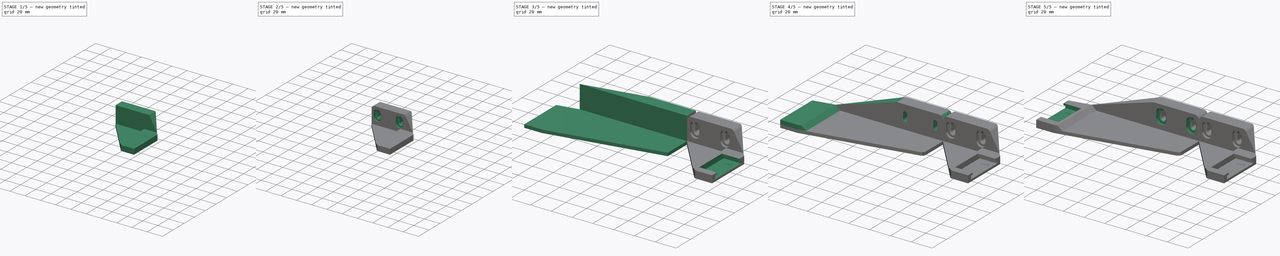
[diagram: build sequence overview — one tinted view per stage of 5, left to right]
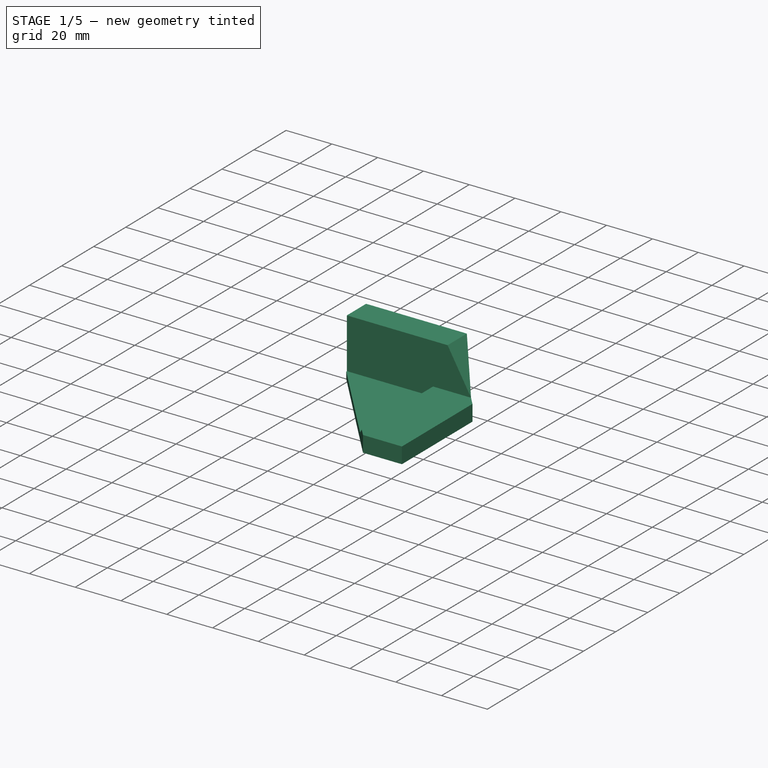
[diagram: stage 1 of 5 — iso view after this stage's code; geometry added in this stage tinted green]
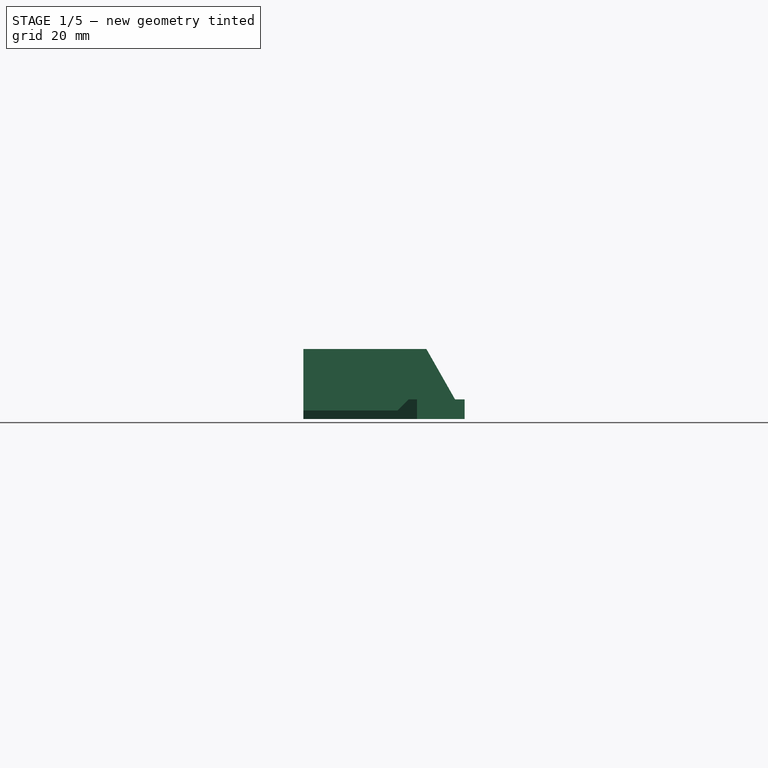
[diagram: stage 1 of 5 — front view after this stage's code; geometry added in this stage tinted green]
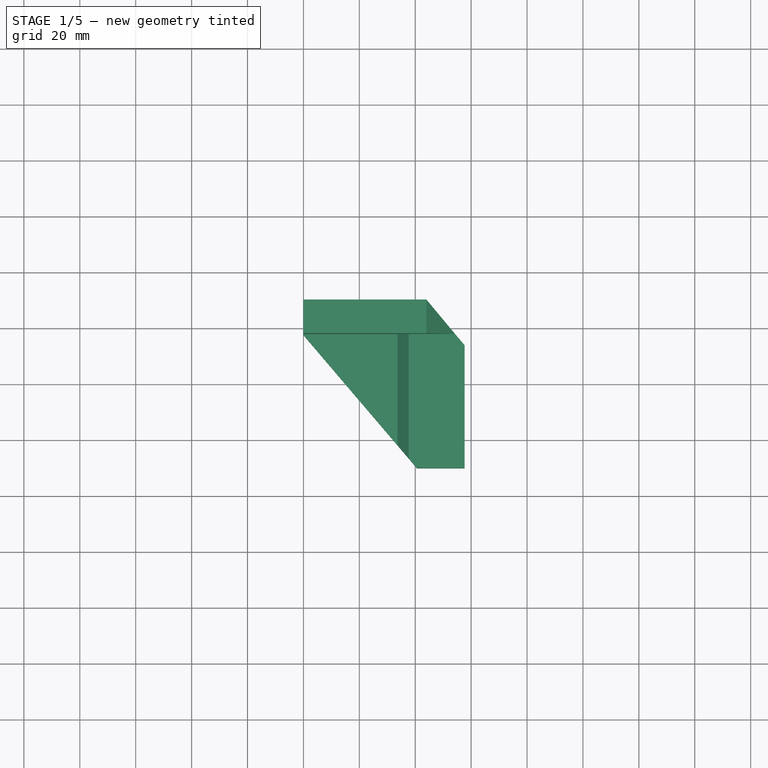
[diagram: stage 1 of 5 — top view after this stage's code; geometry added in this stage tinted green]
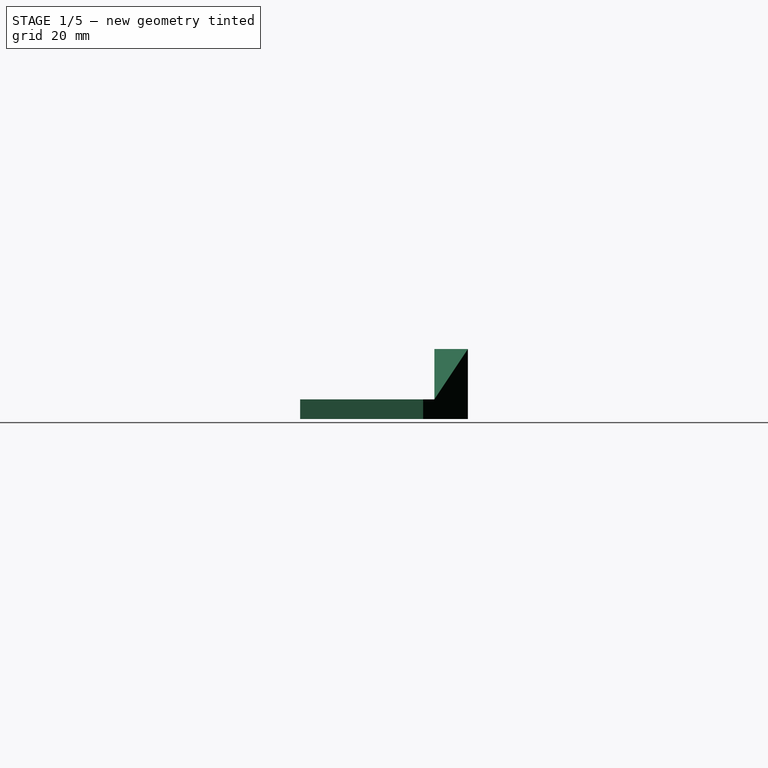
[diagram: stage 1 of 5 — right view after this stage's code; geometry added in this stage tinted green]
FCSTD DOCUMENT  (FreeCAD 0.16R6692 (Git))
Label: RolloMount
License: CreativeCommons Attribution-ShareAlike
LicenseURL: http://creativecommons.org/licenses/by-sa/4.0/
objects: Sketcher::SketchObject×18, PartDesign::Pocket×10, PartDesign::Pad×8, PartDesign::Draft×2, PartDesign::Fillet×2, PartDesign::Chamfer×2, App::DocumentObjectGroup×2
note: 60 computed .brp shape members not serialized (recipe doc carries the construction recipe); baked Part::Feature solids carry a one-line shape summary decoded from their .brp

FEATURE [Sketcher::SketchObject] Sketch  label="1_LeftBase_Sketch"
  sketch-geometry (10):
    g0: LineSegment [constr] StartX=-123.05 StartY=30 StartZ=0 EndX=0 EndY=30 EndZ=0
    g1: LineSegment [constr] StartX=0 StartY=30 StartZ=0 EndX=0 EndY=-30 EndZ=0
    g2: LineSegment [constr] StartX=0 StartY=-30 StartZ=0 EndX=-123.05 EndY=-30 EndZ=0
    g3: LineSegment [constr] StartX=-123.05 StartY=-30 StartZ=0 EndX=-123.05 EndY=30 EndZ=0
    g4: LineSegment StartX=0 StartY=30 StartZ=0 EndX=0 EndY=-8.5351 EndZ=0
    g5: LineSegment StartX=-123.05 StartY=-30 StartZ=0 EndX=-106.05 EndY=-30 EndZ=0
    g6: LineSegment StartX=0 StartY=-8.5351 StartZ=0 EndX=-106.05 EndY=-30 EndZ=0
    g7: LineSegment StartX=-123.05 StartY=-30 StartZ=0 EndX=-123.05 EndY=14 EndZ=0
    g8: LineSegment StartX=-123.05 StartY=14 StartZ=0 EndX=-44 EndY=30 EndZ=0
    g9: LineSegment StartX=-44 StartY=30 StartZ=0 EndX=0 EndY=30 EndZ=0
  constraints (28):
    c: Coincident(g0,g1)
    c: Coincident(g1,g2)
    c: Coincident(g2,g3)
    c: Coincident(g3,g0)
    c: Horizontal(g0)
    c: Horizontal(g2)
    c: Vertical(g1)
    c: Vertical(g3)
    c: DistanceY(g3,g3) = 60
    c: DistanceX(g0,g0) = 123.05
    c: Symmetric(g1,g0,g-1)
    c: PointOnObject(g-1,g1)
    c: Vertical(g4)
    c: Coincident(g4,g0)
    c: Horizontal(g5)
    c: Coincident(g5,g2)
    c: DistanceX(g5,g5) = 17
    c: Coincident(g5,g6)
    c: Coincident(g4,g6)
    c: Coincident(g7,g2)
    c: DistanceY(g7,g7) = 44
    c: Vertical(g7)
    c: Coincident(g8,g7)
    c: PointOnObject(g8,g0)
    c: Coincident(g9,g8)
    c: Coincident(g9,g0)
    c: DistanceX(g9,g9) = 44
    c: Parallel(g8,g6)
FEATURE [Sketcher::SketchObject] Sketch002  label="1_RightBase_Sketch"
  sketch-geometry (10):
    g0: LineSegment [constr] StartX=0 StartY=30 StartZ=0 EndX=57.65 EndY=30 EndZ=0
    g1: LineSegment [constr] StartX=57.65 StartY=30 StartZ=0 EndX=57.65 EndY=-30 EndZ=0
    g2: LineSegment [constr] StartX=57.65 StartY=-30 StartZ=0 EndX=0 EndY=-30 EndZ=0
    g3: LineSegment [constr] StartX=0 StartY=-30 StartZ=0 EndX=0 EndY=30 EndZ=0
    g4: LineSegment StartX=40.65 StartY=-30 StartZ=0 EndX=57.65 EndY=-30 EndZ=0
    g5: LineSegment StartX=0 StartY=30 StartZ=0 EndX=0 EndY=17.6484 EndZ=0
    g6: LineSegment StartX=0 StartY=17.6484 StartZ=0 EndX=40.65 EndY=-30 EndZ=0
    g7: LineSegment StartX=0 StartY=30 StartZ=0 EndX=44 EndY=30 EndZ=0
    g8: LineSegment StartX=57.65 StartY=-30 StartZ=0 EndX=57.65 EndY=14 EndZ=0
    g9: LineSegment StartX=44 StartY=30 StartZ=0 EndX=57.65 EndY=14 EndZ=0
  constraints (28):
    c: Coincident(g0,g1)
    c: Coincident(g2,g3)
    c: Coincident(g3,g0)
    c: Horizontal(g0)
    c: Horizontal(g2)
    c: Vertical(g1)
    c: Vertical(g3)
    c: DistanceX(g0,g0) = 57.65
    c: DistanceY(g1,g1) = 60
    c: Symmetric(g0,g2,g-1)
    c: PointOnObject(g0,g-2)
    c: Horizontal(g4)
    c: Coincident(g5,g0)
    c: Vertical(g5)
    c: Horizontal(g7)
    c: Coincident(g7,g0)
    c: Vertical(g8)
    c: DistanceY(g8,g8) = 44
    c: Coincident(g9,g7)
    c: Coincident(g5,g6)
    c: Coincident(g8,g9)
    c: DistanceX(g7,g7) = 44
    c: Parallel(g9,g6)
    c: DistanceX(g4,g4) = 17
    c: Coincident(g1,g2)
    c: Coincident(g1,g4)
    c: Coincident(g1,g8)
    c: Coincident(g6,g4)
FEATURE [PartDesign::Pad] Pad002  label="1_RightBase_Pad"
  Length = 3
  Length2 = 100
  Sketch = -> Sketch002
  Type = 0
FEATURE [Sketcher::SketchObject] Sketch006  label="2_RightWallMount_Sketch"
  ExternalGeometry = -> [Pad002]
  Placement = pos=(0,0,3) rot=(0,0,1;0rad)
  Support = -> Pad002 [Face8]
  sketch-geometry (4):
    g0: LineSegment StartX=0 StartY=30 StartZ=0 EndX=0 EndY=18 EndZ=0
    g1: LineSegment StartX=0 StartY=18 StartZ=0 EndX=54.2375 EndY=18 EndZ=0
    g2: LineSegment StartX=54.2375 StartY=18 StartZ=0 EndX=44 EndY=30 EndZ=0
    g3: LineSegment StartX=44 StartY=30 StartZ=0 EndX=0 EndY=30 EndZ=0
  constraints (10):
    c: Vertical(g0)
    c: Coincident(g0,g1)
    c: Horizontal(g1)
    c: Coincident(g1,g2)
    c: Coincident(g2,g3)
    c: Coincident(g0,g3)
    c: Coincident(g0,g-3)
    c: Coincident(g2,g-4)
    c: PointOnObject(g1,g-4)
    c: DistanceY(g0,g0) = 12
FEATURE [PartDesign::Pad] Pad005  label="2_RightWallMount_Pad"
  Length = 22
  Length2 = 100
  Sketch = -> Sketch006
  Type = 0
FEATURE [Sketcher::SketchObject] Sketch007  label="3_RightRamp_Sketch"
  ExternalGeometry = -> [Pad005]
  Placement = pos=(0,18,0) rot=(1,0,0;1.5708rad)
  Support = -> Pad005 [Face13]
  sketch-geometry (5):
    g0: LineSegment StartX=43.4312 StartY=26 StartZ=0 EndX=55.2375 EndY=26 EndZ=0
    g1: LineSegment StartX=55.2375 StartY=26 StartZ=0 EndX=55.2375 EndY=5.24176 EndZ=0
    g2: LineSegment StartX=55.2375 StartY=5.24176 StartZ=0 EndX=43.4312 EndY=26 EndZ=0
    g3: GeomPoint [constr] X=44 Y=25 Z=0
    g4: GeomPoint [constr] X=54.2375 Y=7 Z=0
  constraints (13):
    c: Horizontal(g0)
    c: Coincident(g0,g1)
    c: Vertical(g1)
    c: Coincident(g1,g2)
    c: Coincident(g2,g0)
    c: DistanceY(g-4,g0) = 1
    c: DistanceX(g-4,g0) = 1
    c: PointOnObject(g3,g2)
    c: PointOnObject(g4,g2)
    c: PointOnObject(g4,g-4)
    c: PointOnObject(g3,g-3)
    c: DistanceX(g-3,g3) = 44
    c: DistanceY(g-4,g4) = 4
FEATURE [PartDesign::Pocket] Pocket001  label="3_RightRamp_Pocket"
  Length = 5
  Sketch = -> Sketch007
  Type = 1
FEATURE [Sketcher::SketchObject] Sketch008  label="4_RightRolloMount_Sketch"
  ExternalGeometry = -> [Pocket001]
  Placement = pos=(0,0,3) rot=(0,0,1;0rad)
  Support = -> Pocket001 [Face9]
  sketch-geometry (6):
    g0: LineSegment StartX=37.65 StartY=-26.4835 StartZ=0 EndX=40.65 EndY=-30 EndZ=0
    g1: LineSegment StartX=40.65 StartY=-30 StartZ=0 EndX=57.65 EndY=-30 EndZ=0
    g2: LineSegment StartX=57.65 StartY=-30 StartZ=0 EndX=57.65 EndY=14 EndZ=0
    g3: LineSegment StartX=57.65 StartY=14 StartZ=0 EndX=54.2375 EndY=18 EndZ=0
    g4: LineSegment StartX=54.2375 StartY=18 StartZ=0 EndX=37.65 EndY=18 EndZ=0
    g5: LineSegment StartX=37.65 StartY=18 StartZ=0 EndX=37.65 EndY=-26.4835 EndZ=0
  constraints (14):
    c: Coincident(g0,g1)
    c: Coincident(g1,g2)
    c: Coincident(g2,g3)
    c: Coincident(g3,g4)
    c: Coincident(g4,g5)
    c: Coincident(g5,g0)
    c: Vertical(g5)
    c: Coincident(g0,g-3)
    c: Coincident(g1,g-4)
    c: Coincident(g2,g-4)
    c: Coincident(g3,g-5)
    c: Horizontal(g4)
    c: PointOnObject(g0,g-3)
    c: DistanceX(g0,g1) = 20
FEATURE [PartDesign::Pad] Pad006  label="4_RightRolloMount_Pad"
  Length = 4
  Length2 = 100
  Sketch = -> Sketch008
  Type = 0
FEATURE [PartDesign::Draft] Draft  label="5_RightRolloMount_Draft"
  Angle = 45
  Base = -> Pad006 [Face18]
  NeutralPlane = -> Pad006 [Face19]
  Reversed = true
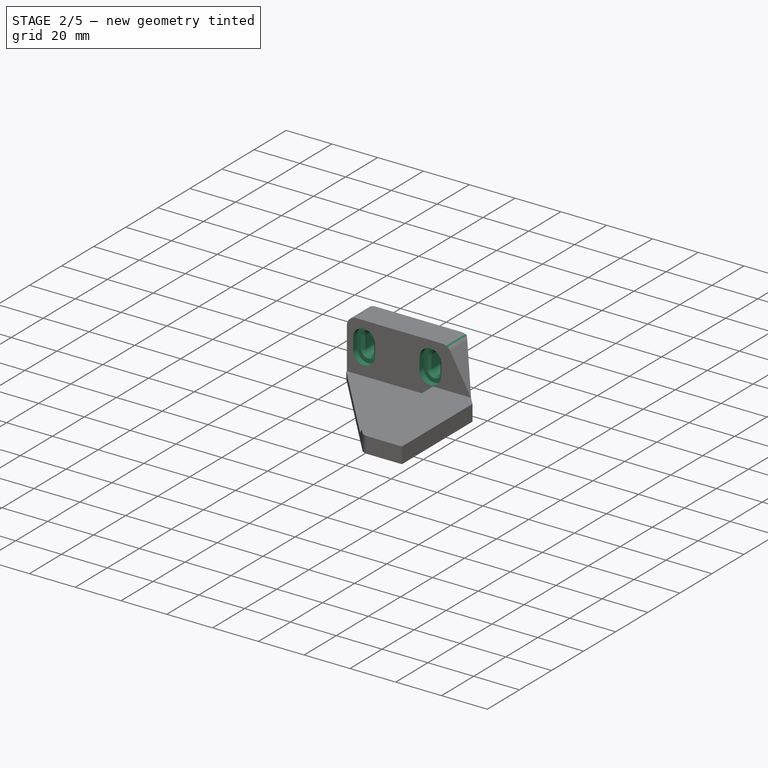
[diagram: stage 2 of 5 — iso view after this stage's code; geometry added in this stage tinted green]
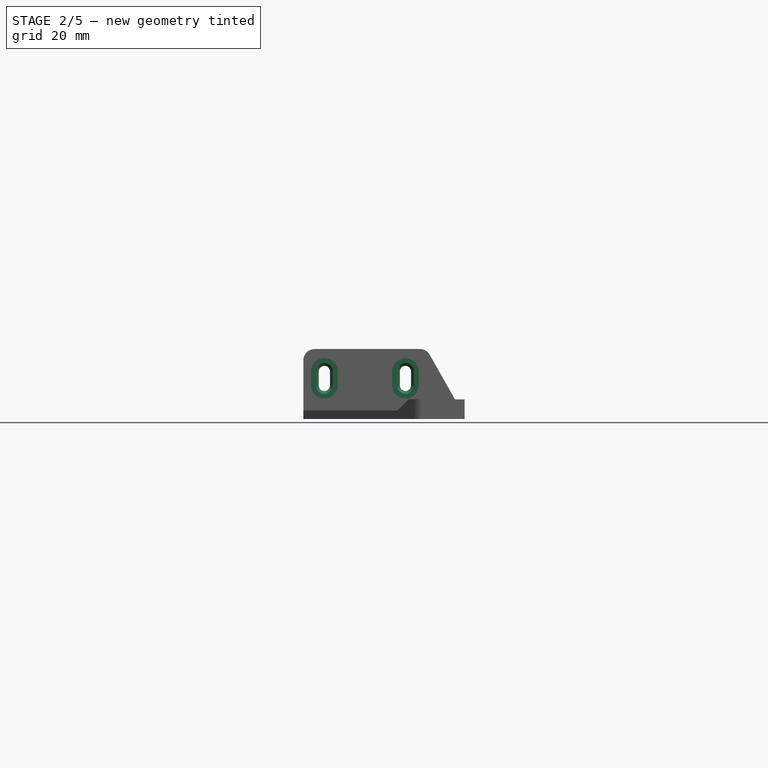
[diagram: stage 2 of 5 — front view after this stage's code; geometry added in this stage tinted green]
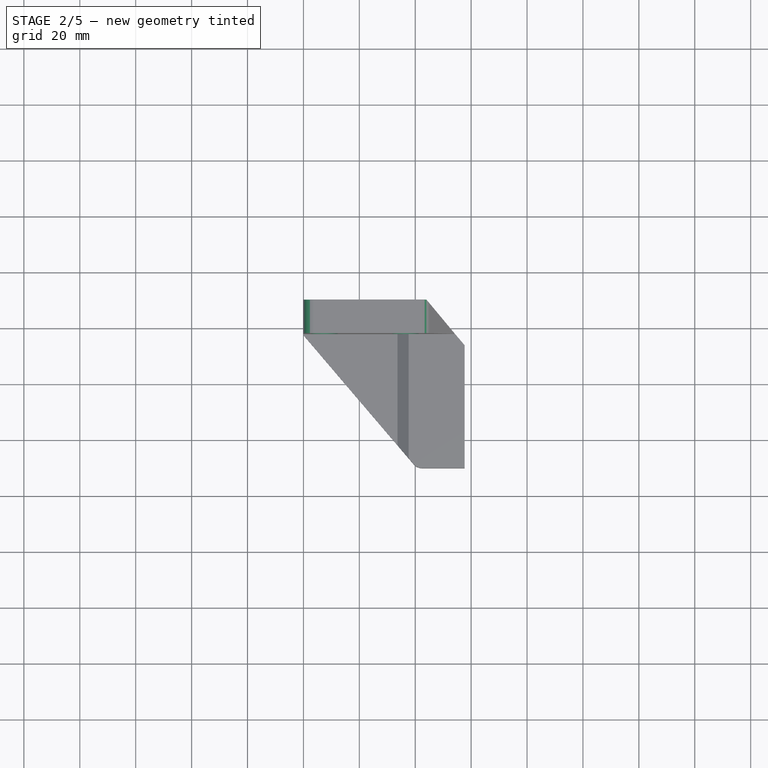
[diagram: stage 2 of 5 — top view after this stage's code; geometry added in this stage tinted green]
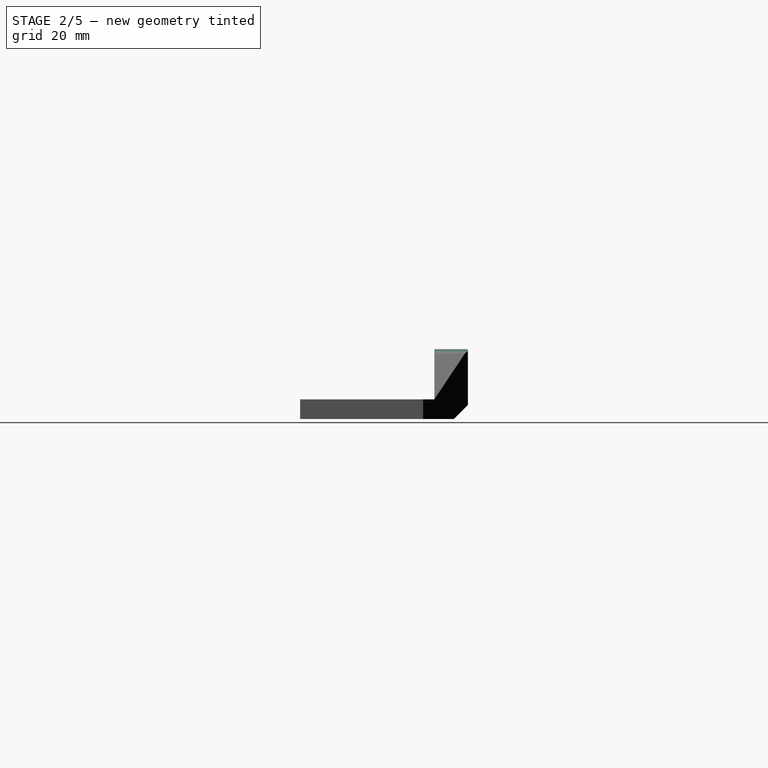
[diagram: stage 2 of 5 — right view after this stage's code; geometry added in this stage tinted green]
FEATURE [PartDesign::Fillet] Fillet001  label="6_RightRounding_Fillet"
  Base = -> Draft [Edge23,Edge40,Edge12]
  Radius = 4
FEATURE [Sketcher::SketchObject] Sketch009  label="7_RightScrewThroughHoles_Sketch"
  Placement = pos=(0,18,0) rot=(1,0,0;1.5708rad)
  Support = -> Fillet001 [Face20]
  sketch-geometry (8):
    g0: ArcOfCircle CenterX=7.5 CenterY=17 CenterZ=0 NormalX=0 NormalY=0 NormalZ=1 Radius=2 StartAngle=0 EndAngle=3.14159
    g1: ArcOfCircle CenterX=7.5 CenterY=12 CenterZ=0 NormalX=0 NormalY=0 NormalZ=1 Radius=2 StartAngle=3.14159 EndAngle=6.28319
    g2: LineSegment StartX=5.5 StartY=17 StartZ=0 EndX=5.5 EndY=12 EndZ=0
    g3: LineSegment StartX=9.5 StartY=17 StartZ=0 EndX=9.5 EndY=12 EndZ=0
    g4: ArcOfCircle CenterX=36.5 CenterY=17 CenterZ=0 NormalX=0 NormalY=0 NormalZ=1 Radius=2 StartAngle=0 EndAngle=3.14159
    g5: ArcOfCircle CenterX=36.5 CenterY=12 CenterZ=0 NormalX=0 NormalY=0 NormalZ=1 Radius=2 StartAngle=3.14159 EndAngle=6.28319
    g6: LineSegment StartX=34.5 StartY=17 StartZ=0 EndX=34.5 EndY=12 EndZ=0
    g7: LineSegment StartX=38.5 StartY=17 StartZ=0 EndX=38.5 EndY=12 EndZ=0
  constraints (20):
    c: Tangent(g0,g3) = 1.5708
    c: Tangent(g0,g2) = -1.5708
    c: Tangent(g2,g1) = -1.5708
    c: Tangent(g3,g1) = 1.5708
    c: Vertical(g2)
    c: Equal(g0,g1)
    c: Tangent(g4,g7) = 1.5708
    c: Tangent(g4,g6) = -1.5708
    c: Tangent(g6,g5) = -1.5708
    c: Tangent(g7,g5) = 1.5708
    c: Vertical(g6)
    c: Equal(g4,g5)
    c: Equal(g0,g4)
    c: Equal(g3,g6)
    c: DistanceY(g-1,g1) = 12
    c: Radius(g0) = 2
    c: DistanceY(g2,g2) = 5
    c: DistanceX(g-1,g1) = 7.5
    c: DistanceX(g0,g4) = 29
    c: DistanceY(g5,g1) = 0
FEATURE [PartDesign::Pocket] Pocket002  label="7_RightScrewThroughHoles_Pocket"
  Length = 5
  Sketch = -> Sketch009
  Type = 1
FEATURE [Sketcher::SketchObject] Sketch010  label="8_RightScrewCounterboreHoles_Sketch"
  ExternalGeometry = -> [Pocket002]
  Placement = pos=(0,18,0) rot=(1,0,0;1.5708rad)
  Support = -> Pocket002 [Face20]
  sketch-geometry (8):
    g0: ArcOfCircle CenterX=7.5 CenterY=17 CenterZ=0 NormalX=0 NormalY=0 NormalZ=1 Radius=4.75 StartAngle=0 EndAngle=3.14159
    g1: ArcOfCircle CenterX=7.5 CenterY=12 CenterZ=0 NormalX=0 NormalY=0 NormalZ=1 Radius=4.75 StartAngle=3.14159 EndAngle=6.28319
    g2: LineSegment StartX=2.75 StartY=17 StartZ=0 EndX=2.75 EndY=12 EndZ=0
    g3: LineSegment StartX=12.25 StartY=17 StartZ=0 EndX=12.25 EndY=12 EndZ=0
    g4: ArcOfCircle CenterX=36.5 CenterY=17 CenterZ=0 NormalX=0 NormalY=0 NormalZ=1 Radius=4.75 StartAngle=0 EndAngle=3.14159
    g5: ArcOfCircle CenterX=36.5 CenterY=12 CenterZ=0 NormalX=0 NormalY=0 NormalZ=1 Radius=4.75 StartAngle=3.14159 EndAngle=6.28319
    g6: LineSegment StartX=31.75 StartY=17 StartZ=0 EndX=31.75 EndY=12 EndZ=0
    g7: LineSegment StartX=41.25 StartY=17 StartZ=0 EndX=41.25 EndY=12 EndZ=0
  constraints (18):
    c: Tangent(g0,g3) = 1.5708
    c: Tangent(g0,g2) = -1.5708
    c: Tangent(g2,g1) = -1.5708
    c: Tangent(g3,g1) = 1.5708
    c: Vertical(g2)
    c: Equal(g0,g1)
    c: Coincident(g0,g-4)
    c: Tangent(g4,g7) = 1.5708
    c: Tangent(g4,g6) = -1.5708
    c: Tangent(g6,g5) = -1.5708
    c: Tangent(g7,g5) = 1.5708
    c: Vertical(g6)
    c: Equal(g4,g5)
    c: Coincident(g4,g-5)
    c: Coincident(g5,g-6)
    c: Coincident(g1,g-3)
    c: Radius(g0) = 4.75
    c: Equal(g0,g4)
FEATURE [PartDesign::Pocket] Pocket003  label="8_RightScrewCounterboreHoles_Pocket"
  Length = 2.5
  Sketch = -> Sketch010
  Type = 0
FEATURE [PartDesign::Chamfer] Chamfer001  label="9_RightScrewBase_Chamfer"
  Base = -> Pocket003 [Edge86,Edge76]
  Size = 1
FEATURE [Sketcher::SketchObject] Sketch013  label="10_RightWallAngle_Sketch"
  ExternalGeometry = -> [Chamfer001]
  Placement = pos=(0,0,0) rot=(0.57735,-0.57735,-0.57735;2.0944rad)
  Support = -> Chamfer001 [Face14]
  sketch-geometry (4):
    g0: LineSegment StartX=-31 StartY=6 StartZ=0 EndX=-31 EndY=-1 EndZ=0
    g1: LineSegment StartX=-31 StartY=-1 StartZ=0 EndX=-24 EndY=-1 EndZ=0
    g2: LineSegment StartX=-24 StartY=-1 StartZ=0 EndX=-31 EndY=6 EndZ=0
    g3: GeomPoint [constr] X=-25 Y=0 Z=0
  constraints (11):
    c: Vertical(g0)
    c: Coincident(g0,g1)
    c: Horizontal(g1)
    c: Coincident(g1,g2)
    c: Coincident(g2,g0)
    c: DistanceX(g0,g-3) = 1
    c: DistanceY(g0,g-3) = 1
    c: PointOnObject(g3,g-1)
    c: PointOnObject(g3,g2)
    c: Equal(g1,g0)
    c: DistanceX(g-3,g3) = 5
FEATURE [PartDesign::Pocket] Pocket006  label="10_RightWallAngle_Pocket"
  Length = 5
  Sketch = -> Sketch013
  Type = 1
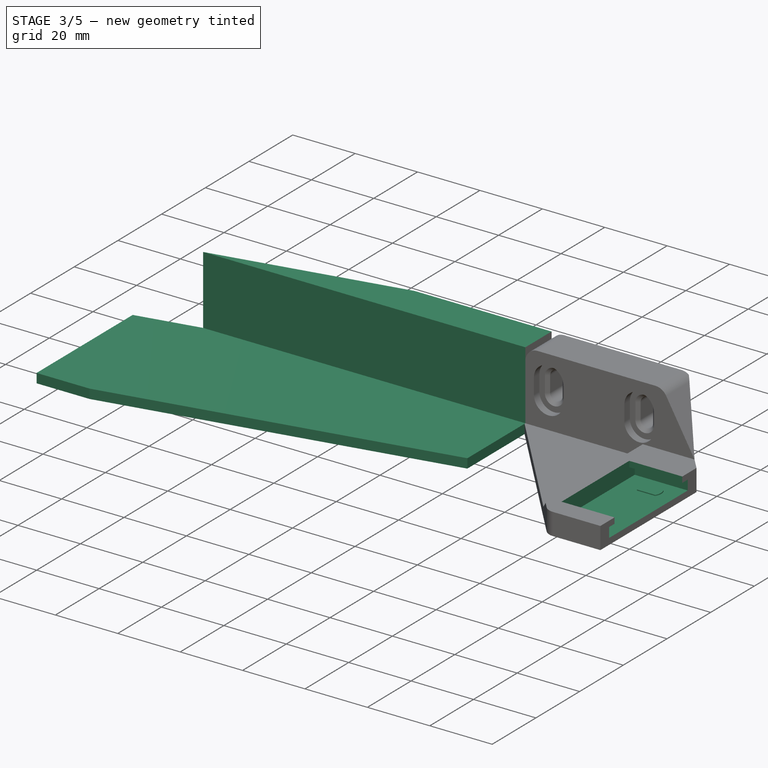
[diagram: stage 3 of 5 — iso view after this stage's code; geometry added in this stage tinted green]
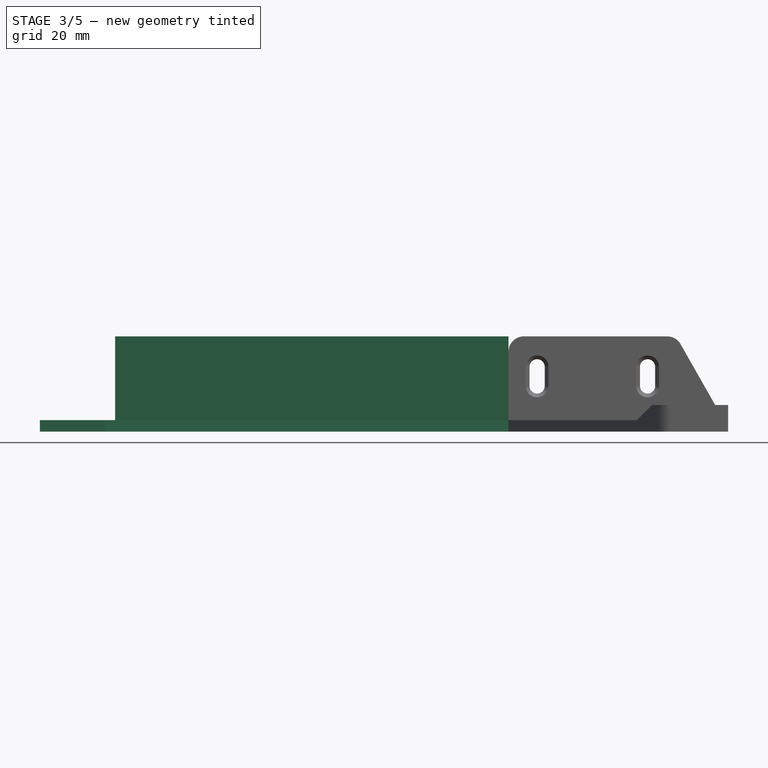
[diagram: stage 3 of 5 — front view after this stage's code; geometry added in this stage tinted green]
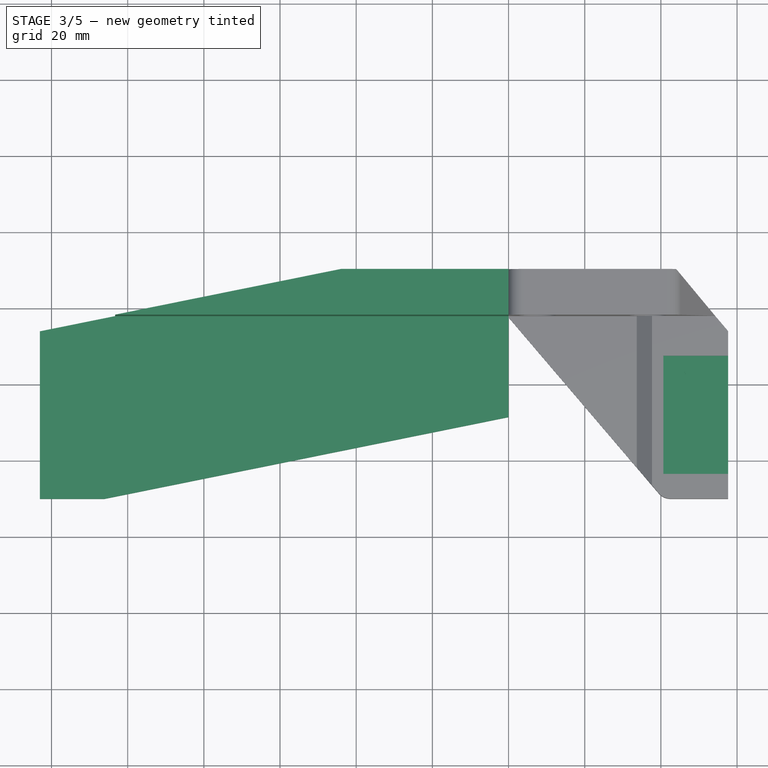
[diagram: stage 3 of 5 — top view after this stage's code; geometry added in this stage tinted green]
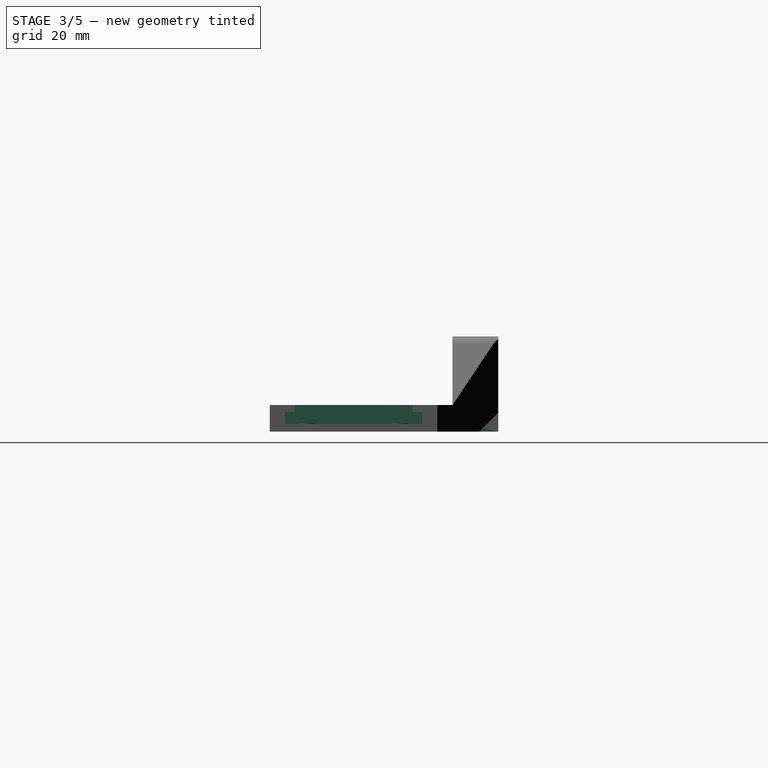
[diagram: stage 3 of 5 — right view after this stage's code; geometry added in this stage tinted green]
FEATURE [PartDesign::Pad] Pad  label="1_LeftBase_Pad"
  Length = 3
  Length2 = 100
  Sketch = -> Sketch
  Type = 0
FEATURE [Sketcher::SketchObject] Sketch003  label="2_LeftWallMount_Sketch"
  ExternalGeometry = -> [Pad]
  Placement = pos=(0,0,3) rot=(0,0,1;0rad)
  Support = -> Pad [Face8]
  sketch-geometry (4):
    g0: LineSegment StartX=-44 StartY=30 StartZ=0 EndX=0 EndY=30 EndZ=0
    g1: LineSegment StartX=0 StartY=30 StartZ=0 EndX=0 EndY=18 EndZ=0
    g2: LineSegment StartX=0 StartY=18 StartZ=0 EndX=-103.287 EndY=18 EndZ=0
    g3: LineSegment StartX=-103.287 StartY=18 StartZ=0 EndX=-44 EndY=30 EndZ=0
  constraints (11):
    c: Coincident(g0,g1)
    c: Coincident(g1,g2)
    c: Coincident(g2,g3)
    c: Coincident(g3,g0)
    c: Horizontal(g0)
    c: Horizontal(g2)
    c: Vertical(g1)
    c: Coincident(g0,g-3)
    c: Coincident(g0,g-3)
    c: DistanceY(g1,g1) = 12
    c: PointOnObject(g2,g-4)
FEATURE [PartDesign::Pad] Pad003  label="2_LeftWallMount_Pad"
  Length = 22
  Length2 = 100
  Sketch = -> Sketch003
  Type = 0
FEATURE [Sketcher::SketchObject] Sketch016  label="11_RightMountSlot_Sketch"
  ExternalGeometry = -> [Pocket006]
  Placement = pos=(57.65,0,0) rot=(0.57735,0.57735,0.57735;2.0944rad)
  Support = -> Pocket006 [Face46]
  sketch-geometry (9):
    g0: LineSegment [constr] StartX=-8 StartY=7 StartZ=0 EndX=-8 EndY=0 EndZ=0
    g1: LineSegment StartX=-23.5 StartY=8 StartZ=0 EndX=-23.5 EndY=5.15 EndZ=0
    g2: LineSegment StartX=-23.5 StartY=5.15 StartZ=0 EndX=-26 EndY=5.15 EndZ=0
    g3: LineSegment StartX=-26 StartY=5.15 StartZ=0 EndX=-26 EndY=2 EndZ=0
    g4: LineSegment StartX=-26 StartY=2 StartZ=0 EndX=10 EndY=2 EndZ=0
    g5: LineSegment StartX=10 StartY=2 StartZ=0 EndX=10 EndY=5.15 EndZ=0
    g6: LineSegment StartX=10 StartY=5.15 StartZ=0 EndX=7.5 EndY=5.15 EndZ=0
    g7: LineSegment StartX=7.5 StartY=5.15 StartZ=0 EndX=7.5 EndY=8 EndZ=0
    g8: LineSegment StartX=7.5 StartY=8 StartZ=0 EndX=-23.5 EndY=8 EndZ=0
  constraints (28):
    c: PointOnObject(g0,g-3)
    c: PointOnObject(g0,g-1)
    c: Vertical(g0)
    c: Symmetric(g-3,g-3,g0)
    c: Vertical(g1)
    c: Coincident(g1,g2)
    c: Horizontal(g2)
    c: Coincident(g2,g3)
    c: Vertical(g3)
    c: Coincident(g3,g4)
    c: Horizontal(g4)
    c: Coincident(g4,g5)
    c: Vertical(g5)
    c: Coincident(g5,g6)
    c: Horizontal(g6)
    c: Coincident(g6,g7)
    c: Vertical(g7)
    c: Coincident(g7,g8)
    c: Coincident(g8,g1)
    c: Horizontal(g8)
    c: Symmetric(g3,g4,g0)
    c: Equal(g2,g6)
    c: Equal(g1,g7)
    c: DistanceY(g-3,g1) = 1
    c: DistanceY(g5,g-3) = 1.85
    c: DistanceY(g3,g3) = 3.15
    c: DistanceX(g8,g8) = 31
    c: DistanceX(g4,g4) = 36
FEATURE [PartDesign::Pocket] Pocket009  label="11_RightMountSlot_Pocket"
  Length = 17
  Sketch = -> Sketch016
  Type = 0
FEATURE [App::DocumentObjectGroup] Group  label="Left"
  Group = -> [Pad,Pad003,Pocket,Pad004,Draft001,Fillet,Pocket004,Pocket005,Chamfer,Pocket007,Pocket008,Pad007]
FEATURE [Sketcher::SketchObject] Sketch018  label="12_RightHoldingPads_Sketch"
  ExternalGeometry = -> [Pocket009]
  Placement = pos=(0,0,2) rot=(0,0,1;0rad)
  Support = -> Pocket009 [Face50]
  sketch-geometry (10):
    g0: LineSegment [constr] StartX=57.65 StartY=-8 StartZ=0 EndX=40.65 EndY=-8 EndZ=0
    g1: Circle [constr] CenterX=49.65 CenterY=4.25 CenterZ=0 NormalX=0 NormalY=0 NormalZ=1 Radius=3.5
    g2: ArcOfCircle CenterX=49.65 CenterY=-20.25 CenterZ=0 NormalX=0 NormalY=0 NormalZ=1 Radius=3.5 StartAngle=2.55923 EndAngle=3.72396
    g3: ArcOfCircle CenterX=49.65 CenterY=-20.25 CenterZ=0 NormalX=0 NormalY=0 NormalZ=1 Radius=3.5 StartAngle=5.70082 EndAngle=6.86555
    g4: LineSegment StartX=46.7269 StartY=-18.325 StartZ=0 EndX=52.5731 EndY=-18.325 EndZ=0
    g5: LineSegment StartX=46.7269 StartY=-22.175 StartZ=0 EndX=52.5731 EndY=-22.175 EndZ=0
    g6: ArcOfCircle CenterX=49.65 CenterY=4.25 CenterZ=0 NormalX=0 NormalY=0 NormalZ=1 Radius=3.5 StartAngle=2.55923 EndAngle=3.72396
    g7: ArcOfCircle CenterX=49.65 CenterY=4.25 CenterZ=0 NormalX=0 NormalY=0 NormalZ=1 Radius=3.5 StartAngle=5.70082 EndAngle=6.86555
    g8: LineSegment StartX=46.7269 StartY=6.175 StartZ=0 EndX=52.5731 EndY=6.175 EndZ=0
    g9: LineSegment StartX=46.7269 StartY=2.325 StartZ=0 EndX=52.5731 EndY=2.325 EndZ=0
  constraints (31):
    c: PointOnObject(g0,g-4)
    c: PointOnObject(g0,g-3)
    c: Horizontal(g0)
    c: Symmetric(g-4,g-4,g0)
    c: Radius(g1) = 3.5
    c: DistanceX(g1,g-4) = 8
    c: Coincident(g3,g2)
    c: Coincident(g4,g2)
    c: Coincident(g4,g3)
    c: Coincident(g5,g2)
    c: Coincident(g5,g3)
    c: Horizontal(g5)
    c: Horizontal(g4)
    c: Equal(g4,g5)
    c: Equal(g3,g2)
    c: Equal(g2,g1)
    c: DistanceY(g3,g3) = 3.85
    c: Symmetric(g2,g1,g0)
    c: Coincident(g6,g1)
    c: Coincident(g7,g1)
    c: Coincident(g8,g6)
    c: Coincident(g8,g7)
    c: Horizontal(g8)
    c: Coincident(g9,g7)
    c: Coincident(g6,g9)
    c: Horizontal(g9)
    c: Equal(g6,g7)
    c: Equal(g7,g1)
    c: Equal(g9,g8)
    c: Equal(g8,g4)
    c: DistanceY(g2,g1) = 24.5
FEATURE [PartDesign::Pad] Pad008  label="12_RightHoldingPads_Pad"
  Length = 0.3
  Length2 = 100
  Sketch = -> Sketch018
  Type = 0
FEATURE [App::DocumentObjectGroup] Group001  label="Right"
  Group = -> [Pad002,Pad005,Pocket001,Pad006,Draft,Fillet001,Pocket002,Pocket003,Chamfer001,Pocket006,Pocket009,Pad008]
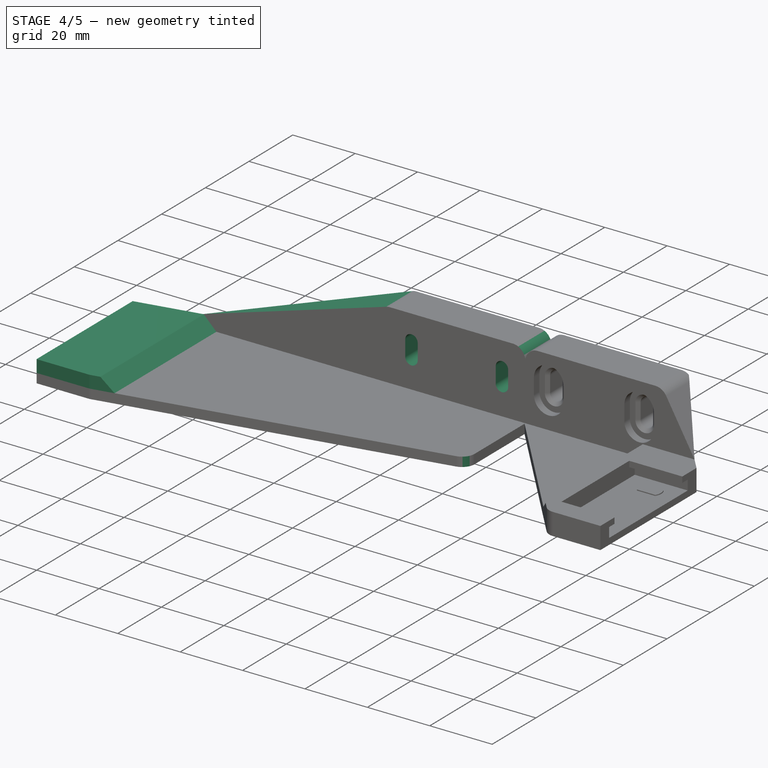
[diagram: stage 4 of 5 — iso view after this stage's code; geometry added in this stage tinted green]
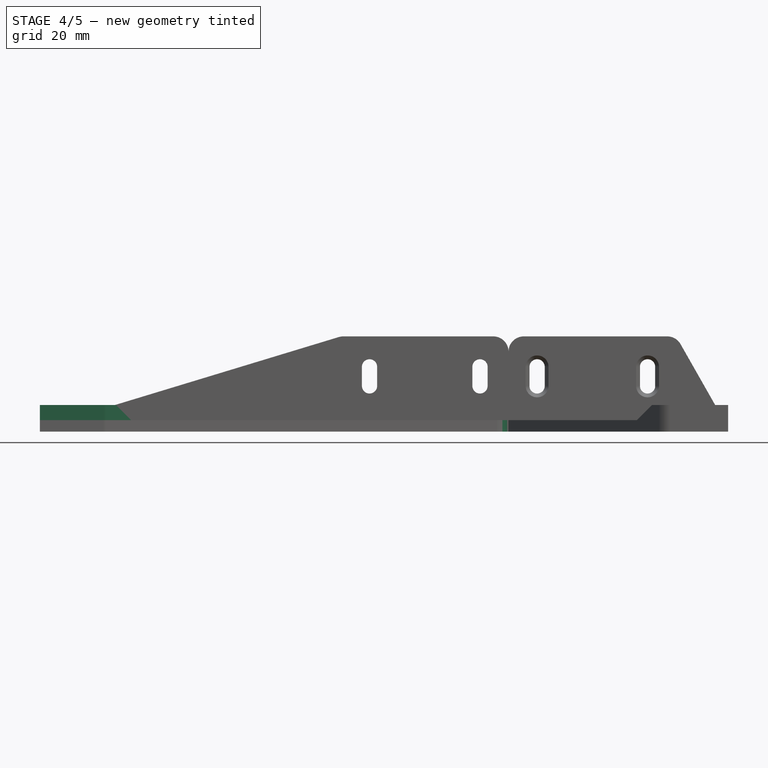
[diagram: stage 4 of 5 — front view after this stage's code; geometry added in this stage tinted green]
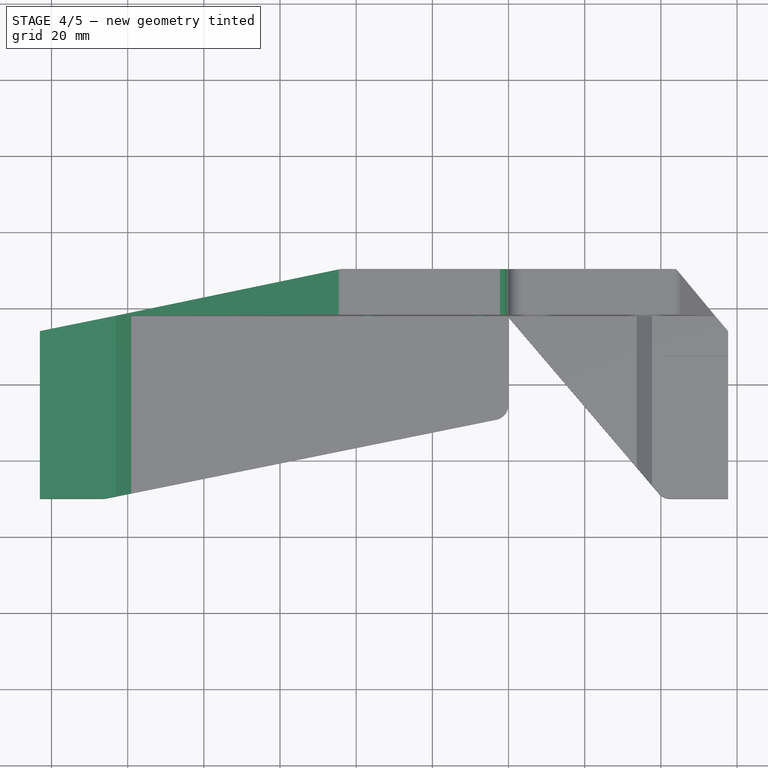
[diagram: stage 4 of 5 — top view after this stage's code; geometry added in this stage tinted green]
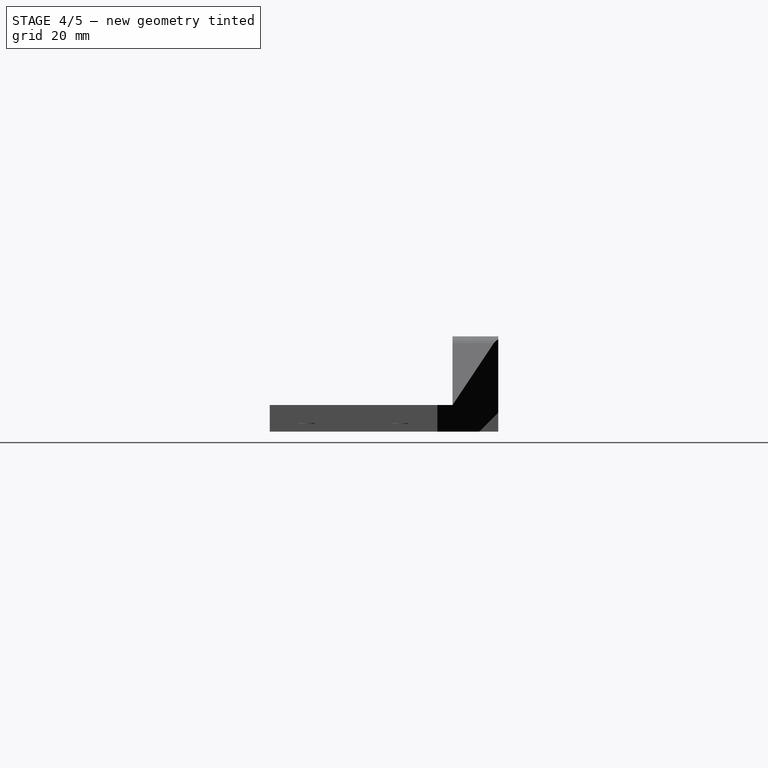
[diagram: stage 4 of 5 — right view after this stage's code; geometry added in this stage tinted green]
FEATURE [Sketcher::SketchObject] Sketch004  label="3_LeftRamp_Sketch"
  ExternalGeometry = -> [Pad003]
  Placement = pos=(0,18,0) rot=(1,0,0;1.5708rad)
  Support = -> Pad003 [Face10]
  sketch-geometry (5):
    g0: LineSegment StartX=-104.287 StartY=6.69639 StartZ=0 EndX=-40.7063 EndY=26 EndZ=0
    g1: LineSegment StartX=-104.287 StartY=6.69639 StartZ=0 EndX=-104.287 EndY=26 EndZ=0
    g2: LineSegment StartX=-104.287 StartY=26 StartZ=0 EndX=-40.7063 EndY=26 EndZ=0
    g3: GeomPoint [constr] X=-44 Y=25 Z=0
    g4: GeomPoint [constr] X=-103.287 Y=7 Z=0
  constraints (13):
    c: Coincident(g0,g1)
    c: Vertical(g1)
    c: Coincident(g1,g2)
    c: Coincident(g2,g0)
    c: Horizontal(g2)
    c: PointOnObject(g3,g0)
    c: PointOnObject(g3,g-4)
    c: DistanceX(g3,g-4) = 44
    c: DistanceX(g1,g-4) = 1
    c: DistanceY(g-4,g1) = 1
    c: PointOnObject(g4,g0)
    c: PointOnObject(g4,g-3)
    c: DistanceY(g-3,g4) = 4
FEATURE [PartDesign::Pocket] Pocket  label="3_LeftRamp_Pocket"
  Length = 5
  Sketch = -> Sketch004
  Type = 1
FEATURE [Sketcher::SketchObject] Sketch005  label="4_LeftRolloMount_Sketch"
  ExternalGeometry = -> [Pocket]
  Placement = pos=(0,0,3) rot=(0,0,1;0rad)
  Support = -> Pocket [Face5]
  sketch-geometry (5):
    g0: LineSegment StartX=-123.05 StartY=14 StartZ=0 EndX=-123.05 EndY=-30 EndZ=0
    g1: LineSegment StartX=-123.05 StartY=-30 StartZ=0 EndX=-106.05 EndY=-30 EndZ=0
    g2: LineSegment StartX=-106.05 StartY=-30 StartZ=0 EndX=-103.05 EndY=-29.3928 EndZ=0
    g3: LineSegment StartX=-123.05 StartY=14 StartZ=0 EndX=-103.05 EndY=18.0481 EndZ=0
    g4: LineSegment StartX=-103.05 StartY=18.0481 StartZ=0 EndX=-103.05 EndY=-29.3928 EndZ=0
  constraints (12):
    c: Coincident(g0,g1)
    c: Coincident(g1,g2)
    c: Coincident(g0,g-4)
    c: Coincident(g0,g-5)
    c: Coincident(g1,g-6)
    c: Coincident(g0,g3)
    c: Coincident(g3,g4)
    c: Coincident(g4,g2)
    c: PointOnObject(g2,g-6)
    c: PointOnObject(g3,g-3)
    c: Vertical(g4)
    c: DistanceX(g0,g2) = 20
FEATURE [PartDesign::Pad] Pad004  label="4_LeftRolloMount_Pad"
  Length = 4
  Length2 = 100
  Sketch = -> Sketch005
  Type = 0
FEATURE [PartDesign::Draft] Draft001  label="5_LeftRolloMount_Draft"
  Angle = 45
  Base = -> Pad004 [Face21]
  NeutralPlane = -> Pad004 [Face17]
  Reversed = true
FEATURE [PartDesign::Fillet] Fillet  label="6_LeftRounding_Fillet"
  Base = -> Draft001 [Edge45,Edge34,Edge17,Edge20]
  Radius = 4
FEATURE [Sketcher::SketchObject] Sketch011
  Placement = pos=(0,18,0) rot=(1,0,0;1.5708rad)
  Support = -> Fillet [Face20]
  sketch-geometry (8):
    g0: ArcOfCircle CenterX=-7.5 CenterY=17 CenterZ=0 NormalX=0 NormalY=0 NormalZ=1 Radius=2 StartAngle=0 EndAngle=3.14159
    g1: ArcOfCircle CenterX=-7.5 CenterY=12 CenterZ=0 NormalX=0 NormalY=0 NormalZ=1 Radius=2 StartAngle=3.14159 EndAngle=6.28319
    g2: LineSegment StartX=-9.5 StartY=17 StartZ=0 EndX=-9.5 EndY=12 EndZ=0
    g3: LineSegment StartX=-5.5 StartY=17 StartZ=0 EndX=-5.5 EndY=12 EndZ=0
    g4: ArcOfCircle CenterX=-36.5 CenterY=17 CenterZ=0 NormalX=0 NormalY=0 NormalZ=1 Radius=2 StartAngle=0 EndAngle=3.14159
    g5: ArcOfCircle CenterX=-36.5 CenterY=12 CenterZ=0 NormalX=0 NormalY=0 NormalZ=1 Radius=2 StartAngle=3.14159 EndAngle=6.28319
    g6: LineSegment StartX=-38.5 StartY=17 StartZ=0 EndX=-38.5 EndY=12 EndZ=0
    g7: LineSegment StartX=-34.5 StartY=17 StartZ=0 EndX=-34.5 EndY=12 EndZ=0
  constraints (20):
    c: Tangent(g0,g3) = 1.5708
    c: Tangent(g0,g2) = -1.5708
    c: Tangent(g2,g1) = -1.5708
    c: Tangent(g3,g1) = 1.5708
    c: Vertical(g2)
    c: Equal(g0,g1)
    c: Tangent(g4,g7) = 1.5708
    c: Tangent(g4,g6) = -1.5708
    c: Tangent(g6,g5) = -1.5708
    c: Tangent(g7,g5) = 1.5708
    c: Vertical(g6)
    c: Equal(g4,g5)
    c: Equal(g4,g0)
    c: Equal(g7,g2)
    c: DistanceY(g6,g6) = 5
    c: Radius(g4) = 2
    c: DistanceY(g1,g5) = 0
    c: DistanceY(g-1,g1) = 12
    c: DistanceX(g4,g0) = 29
    c: DistanceX(g1,g-1) = 7.5
FEATURE [PartDesign::Pocket] Pocket004  label="7_LeftScrewThroughHoles_Pocket"
  Length = 5
  Sketch = -> Sketch011
  Type = 1
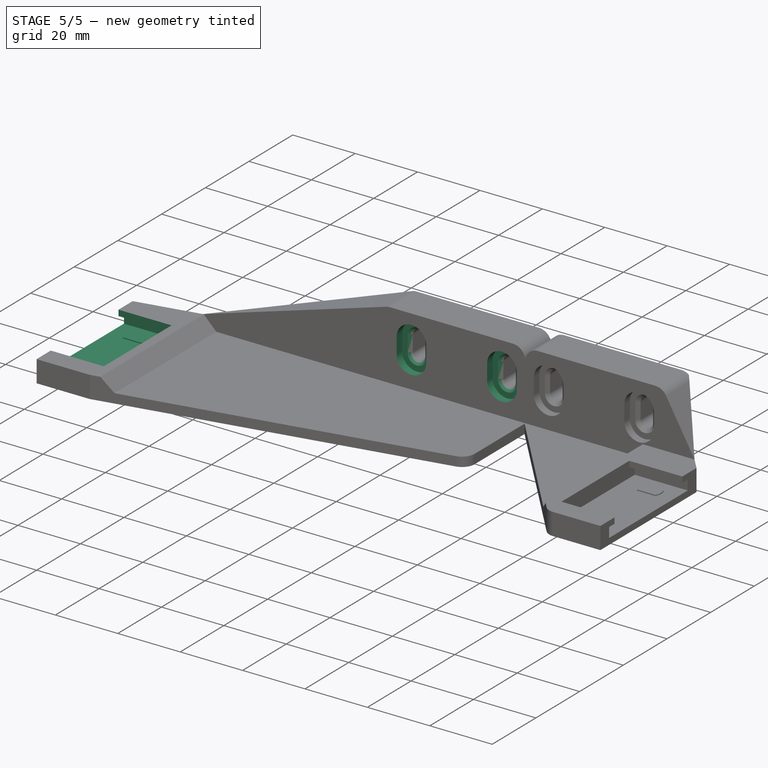
[diagram: stage 5 of 5 — iso view after this stage's code; geometry added in this stage tinted green]
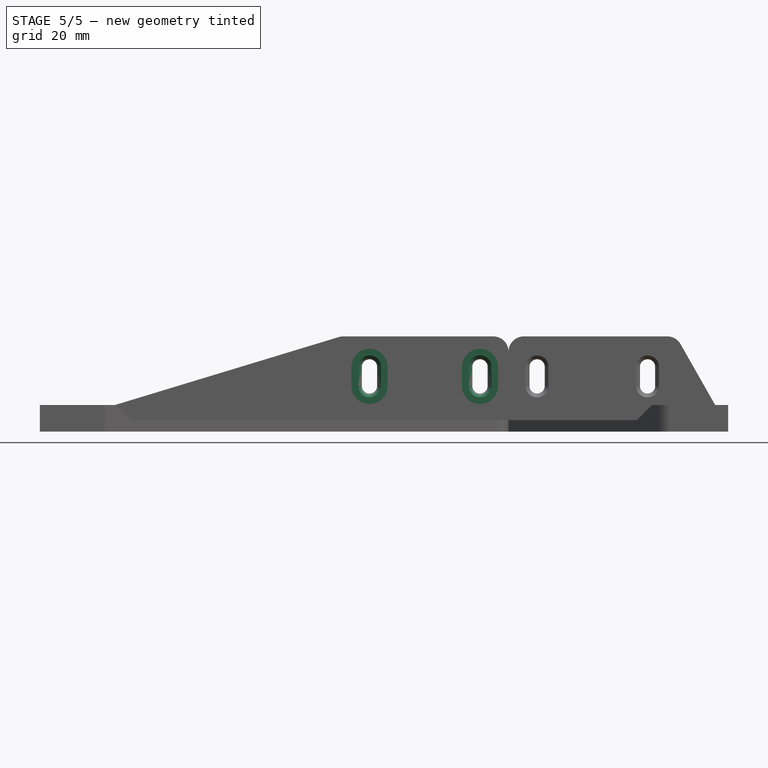
[diagram: stage 5 of 5 — front view after this stage's code; geometry added in this stage tinted green]
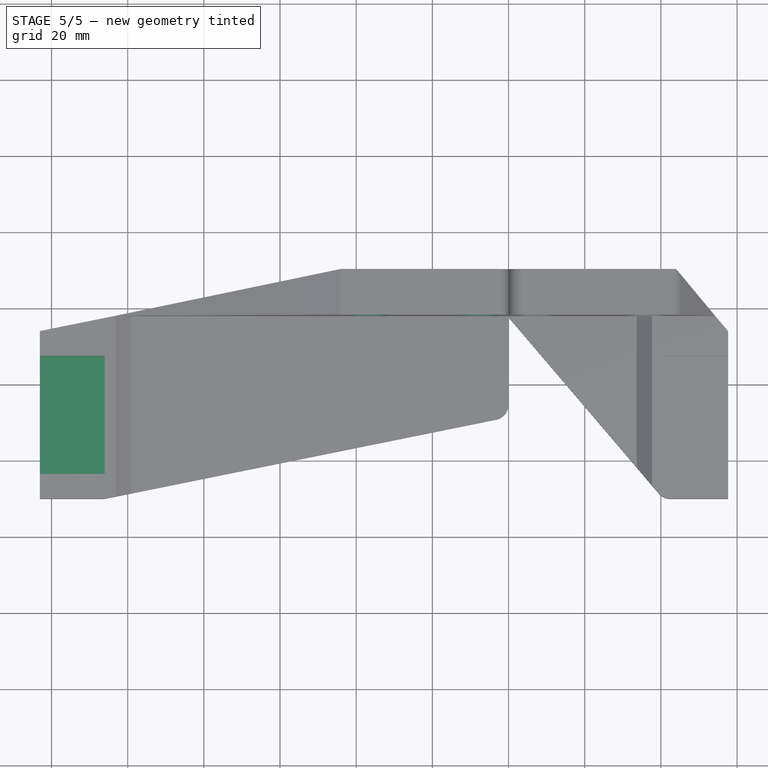
[diagram: stage 5 of 5 — top view after this stage's code; geometry added in this stage tinted green]
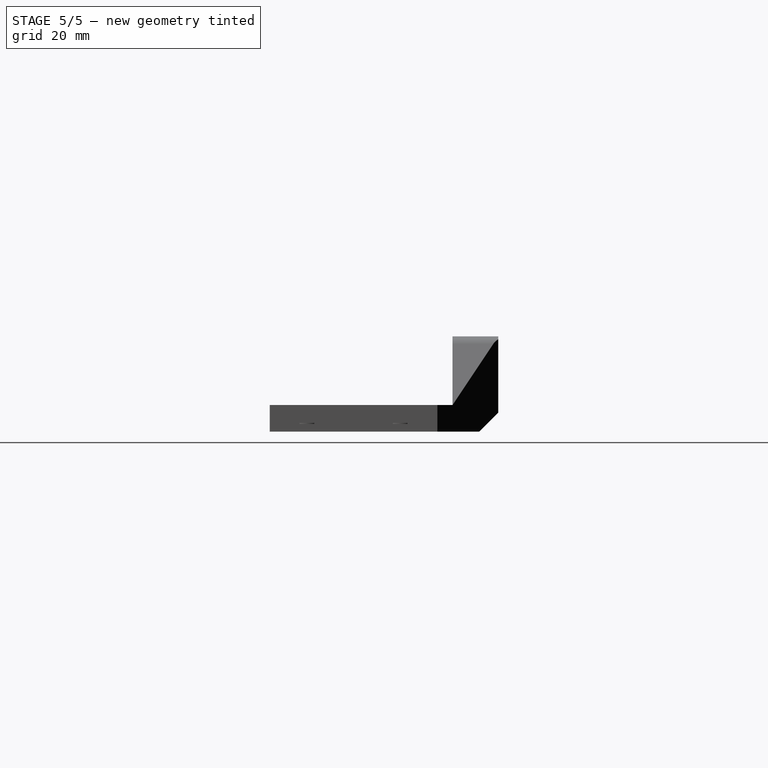
[diagram: stage 5 of 5 — right view after this stage's code; geometry added in this stage tinted green]
FEATURE [Sketcher::SketchObject] Sketch012  label="8_LeftScrewCounterboreHoles_Sketch"
  ExternalGeometry = -> [Pocket004]
  Placement = pos=(0,18,0) rot=(1,0,0;1.5708rad)
  Support = -> Pocket004 [Face20]
  sketch-geometry (8):
    g0: ArcOfCircle CenterX=-36.5 CenterY=17 CenterZ=0 NormalX=0 NormalY=0 NormalZ=1 Radius=4.75 StartAngle=0 EndAngle=3.14159
    g1: ArcOfCircle CenterX=-36.5 CenterY=12 CenterZ=0 NormalX=0 NormalY=0 NormalZ=1 Radius=4.75 StartAngle=3.14159 EndAngle=6.28319
    g2: LineSegment StartX=-41.25 StartY=17 StartZ=0 EndX=-41.25 EndY=12 EndZ=0
    g3: LineSegment StartX=-31.75 StartY=17 StartZ=0 EndX=-31.75 EndY=12 EndZ=0
    g4: ArcOfCircle CenterX=-7.5 CenterY=17 CenterZ=0 NormalX=0 NormalY=0 NormalZ=1 Radius=4.75 StartAngle=0 EndAngle=3.14159
    g5: ArcOfCircle CenterX=-7.5 CenterY=12 CenterZ=0 NormalX=0 NormalY=0 NormalZ=1 Radius=4.75 StartAngle=3.14159 EndAngle=6.28319
    g6: LineSegment StartX=-12.25 StartY=17 StartZ=0 EndX=-12.25 EndY=12 EndZ=0
    g7: LineSegment StartX=-2.75 StartY=17 StartZ=0 EndX=-2.75 EndY=12 EndZ=0
  constraints (18):
    c: Tangent(g0,g3) = 1.5708
    c: Tangent(g0,g2) = -1.5708
    c: Tangent(g2,g1) = -1.5708
    c: Tangent(g3,g1) = 1.5708
    c: Vertical(g2)
    c: Equal(g0,g1)
    c: Coincident(g0,g-3)
    c: Tangent(g4,g7) = 1.5708
    c: Tangent(g4,g6) = -1.5708
    c: Tangent(g6,g5) = -1.5708
    c: Tangent(g7,g5) = 1.5708
    c: Vertical(g6)
    c: Equal(g4,g5)
    c: Coincident(g4,g-6)
    c: Coincident(g1,g-4)
    c: Coincident(g5,g-5)
    c: Radius(g0) = 4.75
    c: Equal(g0,g4)
FEATURE [PartDesign::Pocket] Pocket005  label="8_LeftScrewCounterboreHoles_Pocket"
  Length = 2.5
  Sketch = -> Sketch012
  Type = 0
FEATURE [PartDesign::Chamfer] Chamfer  label="9_LeftScrewBase_Chamfer"
  Base = -> Pocket005 [Edge82,Edge87]
  Size = 1
FEATURE [Sketcher::SketchObject] Sketch014  label="10_LeftWallAngle_Sketch"
  ExternalGeometry = -> [Chamfer]
  Placement = pos=(0,0,0) rot=(0.57735,0.57735,0.57735;2.0944rad)
  Support = -> Chamfer [Face14]
  sketch-geometry (4):
    g0: LineSegment StartX=24 StartY=-1 StartZ=0 EndX=31 EndY=-1 EndZ=0
    g1: LineSegment StartX=31 StartY=-1 StartZ=0 EndX=31 EndY=6 EndZ=0
    g2: LineSegment StartX=31 StartY=6 StartZ=0 EndX=24 EndY=-1 EndZ=0
    g3: GeomPoint [constr] X=25 Y=0 Z=0
  constraints (11):
    c: Horizontal(g0)
    c: Coincident(g0,g1)
    c: Vertical(g1)
    c: Coincident(g1,g2)
    c: Coincident(g2,g0)
    c: Equal(g0,g1)
    c: DistanceY(g0,g-3) = 1
    c: DistanceX(g-3,g0) = 1
    c: PointOnObject(g3,g2)
    c: PointOnObject(g3,g-1)
    c: DistanceX(g3,g-3) = 5
FEATURE [PartDesign::Pocket] Pocket007  label="10_LeftWallAngle_Pocket"
  Length = 5
  Sketch = -> Sketch014
  Type = 1
FEATURE [Sketcher::SketchObject] Sketch015  label="11_LeftMountSlot_Sketch"
  ExternalGeometry = -> [Pocket007]
  Placement = pos=(-123.05,0,0) rot=(0.57735,-0.57735,-0.57735;2.0944rad)
  Support = -> Pocket007 [Face52]
  sketch-geometry (9):
    g0: LineSegment StartX=-7.5 StartY=8 StartZ=0 EndX=-7.5 EndY=5.15 EndZ=0
    g1: LineSegment StartX=-7.5 StartY=5.15 StartZ=0 EndX=-10 EndY=5.15 EndZ=0
    g2: LineSegment StartX=-10 StartY=5.15 StartZ=0 EndX=-10 EndY=2 EndZ=0
    g3: LineSegment StartX=-10 StartY=2 StartZ=0 EndX=26 EndY=2 EndZ=0
    g4: LineSegment StartX=26 StartY=2 StartZ=0 EndX=26 EndY=5.15 EndZ=0
    g5: LineSegment StartX=26 StartY=5.15 StartZ=0 EndX=23.5 EndY=5.15 EndZ=0
    g6: LineSegment StartX=23.5 StartY=5.15 StartZ=0 EndX=23.5 EndY=8 EndZ=0
    g7: LineSegment StartX=23.5 StartY=8 StartZ=0 EndX=-7.5 EndY=8 EndZ=0
    g8: LineSegment [constr] StartX=8 StartY=0 StartZ=0 EndX=8 EndY=7 EndZ=0
  constraints (28):
    c: Vertical(g0)
    c: Coincident(g0,g1)
    c: Horizontal(g1)
    c: Coincident(g1,g2)
    c: Vertical(g2)
    c: Coincident(g2,g3)
    c: Horizontal(g3)
    c: Coincident(g3,g4)
    c: Vertical(g4)
    c: Coincident(g4,g5)
    c: Horizontal(g5)
    c: Coincident(g5,g6)
    c: Vertical(g6)
    c: Coincident(g6,g7)
    c: Coincident(g7,g0)
    c: Horizontal(g7)
    c: Equal(g1,g5)
    c: Equal(g0,g6)
    c: PointOnObject(g8,g-1)
    c: PointOnObject(g8,g-3)
    c: Vertical(g8)
    c: Symmetric(g-3,g-3,g8)
    c: Symmetric(g2,g3,g8)
    c: DistanceY(g-3,g0) = 1
    c: DistanceY(g5,g-3) = 1.85
    c: DistanceX(g3,g3) = 36
    c: DistanceY(g2,g2) = 3.15
    c: DistanceX(g7,g7) = 31
FEATURE [PartDesign::Pocket] Pocket008  label="11_LeftMountSlot_Pocket"
  Length = 17
  Sketch = -> Sketch015
  Type = 0
FEATURE [Sketcher::SketchObject] Sketch017  label="12_LeftHoldingPads_Sketch"
  ExternalGeometry = -> [Pocket008]
  Placement = pos=(0,0,2) rot=(0,0,1;0rad)
  Support = -> Pocket008 [Face54]
  sketch-geometry (10):
    g0: Circle [constr] CenterX=-115.05 CenterY=4.25 CenterZ=0 NormalX=0 NormalY=0 NormalZ=1 Radius=3.5
    g1: LineSegment [constr] StartX=-123.05 StartY=-8 StartZ=0 EndX=-106.05 EndY=-8 EndZ=0
    g2: LineSegment StartX=-117.973 StartY=6.175 StartZ=0 EndX=-112.127 EndY=6.175 EndZ=0
    g3: LineSegment StartX=-117.973 StartY=2.325 StartZ=0 EndX=-112.127 EndY=2.325 EndZ=0
    g4: ArcOfCircle CenterX=-115.05 CenterY=-20.25 CenterZ=0 NormalX=0 NormalY=0 NormalZ=1 Radius=3.5 StartAngle=2.55923 EndAngle=3.72396
    g5: ArcOfCircle CenterX=-115.05 CenterY=-20.25 CenterZ=0 NormalX=0 NormalY=0 NormalZ=1 Radius=3.5 StartAngle=5.70082 EndAngle=6.86555
    g6: LineSegment StartX=-117.973 StartY=-18.325 StartZ=0 EndX=-112.127 EndY=-18.325 EndZ=0
    g7: LineSegment StartX=-117.973 StartY=-22.175 StartZ=0 EndX=-112.127 EndY=-22.175 EndZ=0
    g8: ArcOfCircle CenterX=-115.05 CenterY=4.25 CenterZ=0 NormalX=0 NormalY=0 NormalZ=1 Radius=3.5 StartAngle=2.55923 EndAngle=3.72396
    g9: ArcOfCircle CenterX=-115.05 CenterY=4.25 CenterZ=0 NormalX=0 NormalY=0 NormalZ=1 Radius=3.5 StartAngle=5.70082 EndAngle=6.86555
  constraints (32):
    c: PointOnObject(g1,g-3)
    c: PointOnObject(g1,g-4)
    c: Horizontal(g1)
    c: Symmetric(g-3,g-3,g1)
    c: DistanceX(g-3,g0) = 8
    c: PointOnObject(g2,g0)
    c: Horizontal(g2)
    c: PointOnObject(g3,g0)
    c: Horizontal(g3)
    c: Radius(g0) = 3.5
    c: Equal(g3,g2)
    c: DistanceY(g3,g2) = 3.85
    c: Coincident(g6,g4)
    c: Coincident(g6,g5)
    c: Coincident(g7,g4)
    c: Coincident(g7,g5)
    c: Coincident(g8,g0)
    c: Coincident(g8,g2)
    c: Coincident(g8,g3)
    c: Coincident(g9,g0)
    c: Coincident(g9,g2)
    c: Coincident(g9,g3)
    c: PointOnObject(g2,g0)
    c: Horizontal(g6)
    c: Horizontal(g7)
    c: Equal(g6,g7)
    c: Equal(g6,g3)
    c: Equal(g5,g4)
    c: Equal(g4,g0)
    c: Coincident(g4,g5)
    c: Symmetric(g4,g0,g1)
    c: DistanceY(g4,g0) = 24.5
FEATURE [PartDesign::Pad] Pad007  label="12_LeftHoldingPads_Pad"
  Length = 0.3
  Length2 = 100
  Sketch = -> Sketch017
  Type = 0
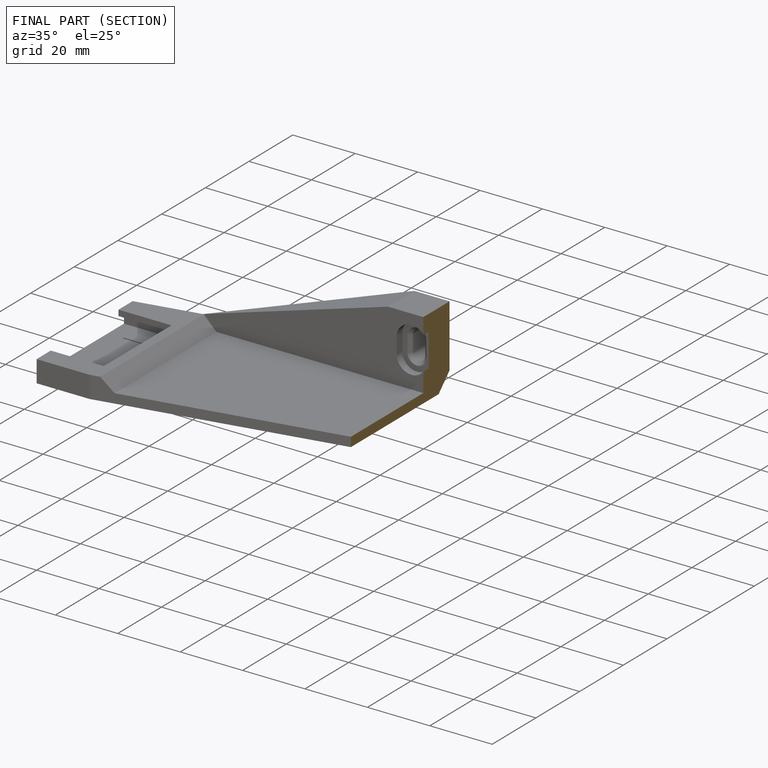
[diagram: finished part — half-section view (interior)]
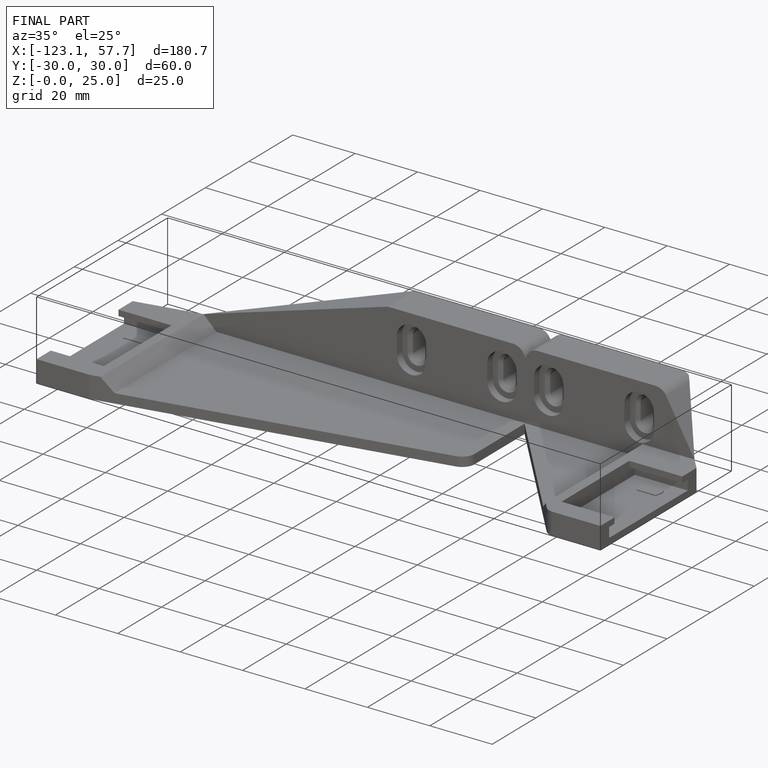
[diagram: finished part — iso view with bounding-box wireframe]
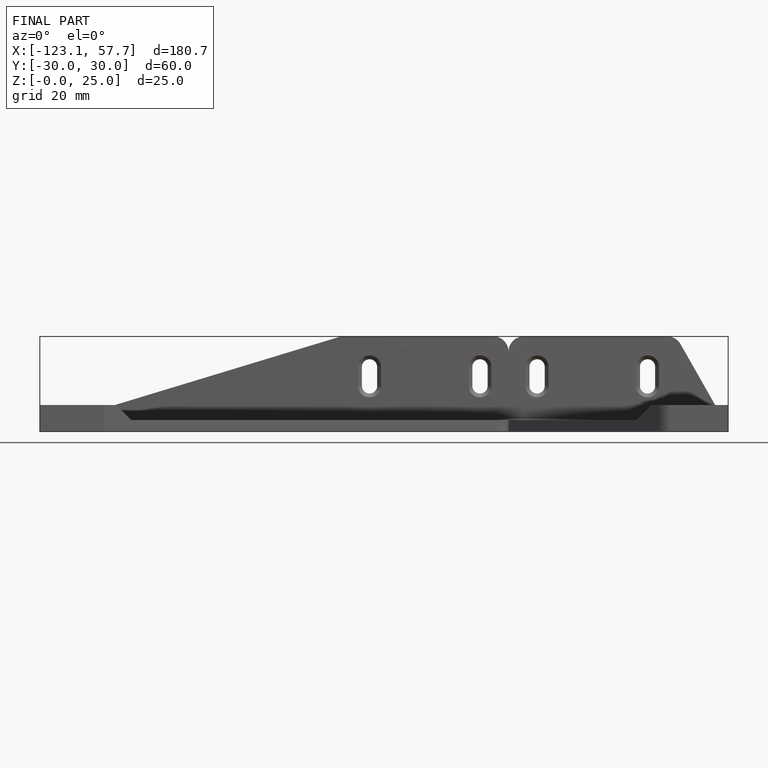
[diagram: finished part — front view with bounding-box wireframe]
